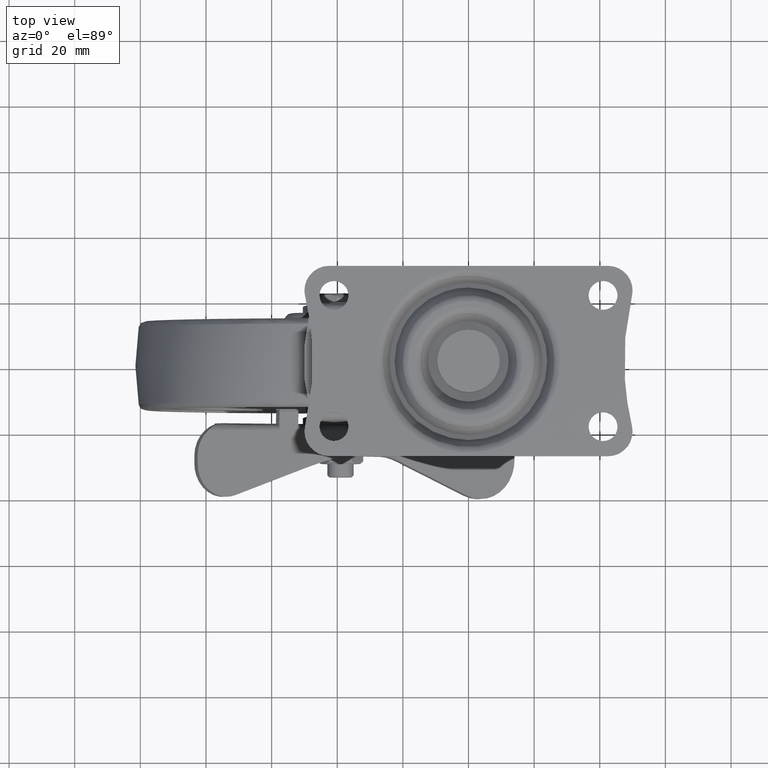
[diagram: clean part render]
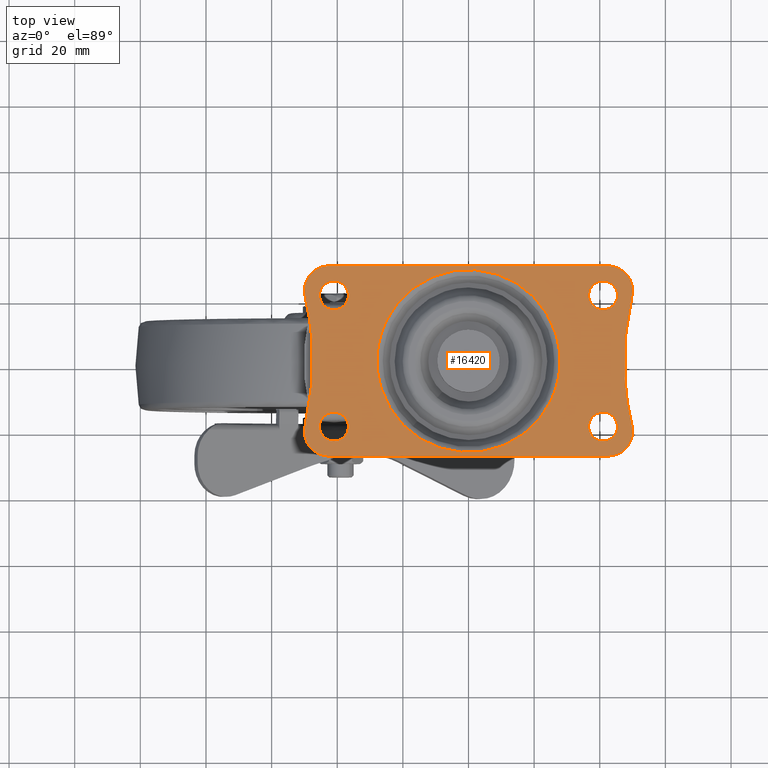
[diagram: same view with one face highlighted and labeled with its STEP entity id]
A machine part, top view. The second image highlights one B-rep face of the part: STEP entity #16420.
In plain terms, the highlighted face is a freeform B-spline surface patch.
Its self-contained STEP definition (entity closure, byte-faithful):
#14573=CARTESIAN_POINT('',(-44.191646626339647,16.971240765977491,1.999999999968882));
#14574=VERTEX_POINT('',#14573);
#14575=CARTESIAN_POINT('',(-40.999995359596333,15.599999900002450,2.0));
#14576=VERTEX_POINT('',#14575);
#14577=CARTESIAN_POINT('',(-44.191646626339647,16.971240765977491,1.999999999968882));
#14578=CARTESIAN_POINT('',(-43.961235314722451,16.728365491330809,1.999999999971126));
#14579=CARTESIAN_POINT('',(-43.415969586831231,16.271503236172990,1.999999999976445));
#14580=CARTESIAN_POINT('',(-42.338951381846186,15.742523104143819,1.999999999986951));
#14581=CARTESIAN_POINT('',(-41.483611512215937,15.599680009546010,1.999999999995282));
#14582=CARTESIAN_POINT('',(-40.999995359596333,15.599999900002450,2.0));
#14583=B_SPLINE_CURVE_WITH_KNOTS('',3,(#14577,#14578,#14579,#14580,#14581,#14582),.UNSPECIFIED.,.F.,.U.,(4,1,1,4),(0.000000129538949,1.004362962533802,2.120273938149728,3.571043816610418),.UNSPECIFIED.);
#14584=EDGE_CURVE('',#14574,#14576,#14583,.T.);
#14586=CARTESIAN_POINT('',(-36.599999900000000,20.0,2.0));
#14587=VERTEX_POINT('',#14586);
#14588=CARTESIAN_POINT('',(-40.999995359596333,15.599999900002450,2.0));
#14589=CARTESIAN_POINT('',(-40.423922617766792,15.599331991319540,2.000000000000008));
#14590=CARTESIAN_POINT('',(-39.524484246894261,15.779375252450720,1.999999999999987));
#14591=CARTESIAN_POINT('',(-38.540924791815407,16.320911521973748,2.000000000000016));
#14592=CARTESIAN_POINT('',(-37.843375976581221,16.893370175453480,1.999999999999981));
#14593=CARTESIAN_POINT('',(-37.198973422651846,17.678282236987311,2.000000000000022));
#14594=CARTESIAN_POINT('',(-36.712441952868318,18.776124843531910,1.999999999999999));
#14595=CARTESIAN_POINT('',(-36.599883324859860,19.604031389509959,2.000000000000001));
#14596=CARTESIAN_POINT('',(-36.599999900000000,20.0,2.0));
#14597=B_SPLINE_CURVE_WITH_KNOTS('',3,(#14588,#14589,#14590,#14591,#14592,#14593,#14594,#14595,#14596),.UNSPECIFIED.,.F.,.U.,(4,1,1,1,1,1,4),(0.000000460146259,1.727919049664438,2.699934183085161,3.347906009620093,4.427776727025464,5.723763383410947,6.911674816714598),.UNSPECIFIED.);
#14598=EDGE_CURVE('',#14576,#14587,#14597,.T.);
#14600=CARTESIAN_POINT('',(-37.808353373660353,23.028759234022509,1.999999999968882));
#14601=VERTEX_POINT('',#14600);
#14602=CARTESIAN_POINT('',(-36.599999900000000,20.0,2.0));
#14603=CARTESIAN_POINT('',(-36.599660215936602,20.522020335984472,1.999999999994639));
#14604=CARTESIAN_POINT('',(-36.800517970858103,21.635222263782779,1.999999999983197));
#14605=CARTESIAN_POINT('',(-37.400599769860648,22.600071287989550,1.999999999973289));
#14606=CARTESIAN_POINT('',(-37.808353373660353,23.028759234022509,1.999999999968882));
#14607=B_SPLINE_CURVE_WITH_KNOTS('',3,(#14602,#14603,#14604,#14605,#14606),.UNSPECIFIED.,.F.,.U.,(4,1,4),(0.000000125255836,1.565958961991485,3.340637922588658),.UNSPECIFIED.);
#14608=EDGE_CURVE('',#14587,#14601,#14607,.T.);
#14677=CARTESIAN_POINT('',(-45.400000100000007,20.0,2.0));
#14678=VERTEX_POINT('',#14677);
#14679=CARTESIAN_POINT('',(-45.400000100000007,20.0,2.0));
#14680=CARTESIAN_POINT('',(-45.400221511531832,19.547603577149410,1.999999999995352));
#14681=CARTESIAN_POINT('',(-45.275474447805280,18.747380211655621,1.999999999987130));
#14682=CARTESIAN_POINT('',(-44.810909382234570,17.726764749346529,1.999999999976644));
#14683=CARTESIAN_POINT('',(-44.407265641416863,17.198380396016809,1.999999999971214));
#14684=CARTESIAN_POINT('',(-44.191646626339647,16.971240765977491,1.999999999968882));
#14685=B_SPLINE_CURVE_WITH_KNOTS('',3,(#14679,#14680,#14681,#14682,#14683,#14684),.UNSPECIFIED.,.F.,.U.,(4,1,1,4),(0.000000125255855,1.357158161508154,2.401079657008411,3.340637922588672),.UNSPECIFIED.);
#14686=EDGE_CURVE('',#14678,#14574,#14685,.T.);
#14722=CARTESIAN_POINT('',(-41.000004640403688,24.400000099997548,2.0));
#14723=VERTEX_POINT('',#14722);
#14724=CARTESIAN_POINT('',(-37.808353373660353,23.028759234022509,1.999999999968882));
#14725=CARTESIAN_POINT('',(-38.243109330103223,23.488136943758889,1.999999999973118));
#14726=CARTESIAN_POINT('',(-39.252078322513412,24.170421980182098,1.999999999982962));
#14727=CARTESIAN_POINT('',(-40.441962493426288,24.400525060441819,1.999999999994558));
#14728=CARTESIAN_POINT('',(-41.000004640403688,24.400000099997548,2.0));
#14729=B_SPLINE_CURVE_WITH_KNOTS('',3,(#14724,#14725,#14726,#14727,#14728),.UNSPECIFIED.,.F.,.U.,(4,1,4),(0.000000129538670,1.897087739368949,3.571043816610434),.UNSPECIFIED.);
#14730=EDGE_CURVE('',#14601,#14723,#14729,.T.);
#14732=CARTESIAN_POINT('',(-41.000004640403688,24.400000099997548,2.0));
#14733=CARTESIAN_POINT('',(-41.576048479000022,24.400591435463319,1.999999999999997));
#14734=CARTESIAN_POINT('',(-42.547524523635659,24.206347561044382,2.000000000000003));
#14735=CARTESIAN_POINT('',(-43.645874076096632,23.565954302906182,1.999999999999997));
#14736=CARTESIAN_POINT('',(-44.484332436499407,22.767891996985220,2.000000000000004));
#14737=CARTESIAN_POINT('',(-45.192012298299922,21.619583956057610,1.999999999999989));
#14738=CARTESIAN_POINT('',(-45.400609845654081,20.576025958989351,2.000000000000009));
#14739=CARTESIAN_POINT('',(-45.400000100000007,20.0,2.0));
#14740=B_SPLINE_CURVE_WITH_KNOTS('',3,(#14732,#14733,#14734,#14735,#14736,#14737,#14738,#14739),.UNSPECIFIED.,.F.,.U.,(4,1,1,1,1,4),(0.000000460136149,1.727919049657275,2.915873930165517,3.779741512302285,5.183756225166462,6.911674816714668),.UNSPECIFIED.);
#14741=EDGE_CURVE('',#14723,#14678,#14740,.T.);
#14764=CARTESIAN_POINT('',(-44.191646626339647,-23.028759234022509,1.999999999968882));
#14765=VERTEX_POINT('',#14764);
#14766=CARTESIAN_POINT('',(-40.999995359596340,-24.400000099997548,2.0));
#14767=VERTEX_POINT('',#14766);
#14768=CARTESIAN_POINT('',(-44.191646626339647,-23.028759234022509,1.999999999968882));
#14769=CARTESIAN_POINT('',(-43.910077149045343,-23.325659288548412,1.999999999971626));
#14770=CARTESIAN_POINT('',(-43.292735522749354,-23.816610649248020,1.999999999977649));
#14771=CARTESIAN_POINT('',(-42.190242142628513,-24.290255093360120,1.999999999988392));
#14772=CARTESIAN_POINT('',(-41.409191854867558,-24.400155614364241,1.999999999996015));
#14773=CARTESIAN_POINT('',(-40.999995359596340,-24.400000099997548,2.0));
#14774=B_SPLINE_CURVE_WITH_KNOTS('',3,(#14768,#14769,#14770,#14771,#14772,#14773),.UNSPECIFIED.,.F.,.U.,(4,1,1,4),(0.000000129539464,1.227551161257772,2.343492784761684,3.571043816610414),.UNSPECIFIED.);
#14775=EDGE_CURVE('',#14765,#14767,#14774,.T.);
#14777=CARTESIAN_POINT('',(-36.599999900000000,-20.0,2.0));
#14778=VERTEX_POINT('',#14777);
#14779=CARTESIAN_POINT('',(-40.999995359596340,-24.400000099997548,2.0));
#14780=CARTESIAN_POINT('',(-40.604020143094132,-24.400141248669190,2.0));
#14781=CARTESIAN_POINT('',(-39.848166653534307,-24.297212129517298,2.0));
#14782=CARTESIAN_POINT('',(-38.675172635750457,-23.811736003103078,2.000000000000002));
#14783=CARTESIAN_POINT('',(-37.771588425417228,-23.070165803609541,1.999999999999998));
#14784=CARTESIAN_POINT('',(-37.167829671779259,-22.212299670192198,2.000000000000004));
#14785=CARTESIAN_POINT('',(-36.731366590510639,-21.259710259592190,1.999999999999993));
#14786=CARTESIAN_POINT('',(-36.599619817956643,-20.504027489536021,1.999999999999997));
#14787=CARTESIAN_POINT('',(-36.599999900000000,-20.0,2.0));
#14788=B_SPLINE_CURVE_WITH_KNOTS('',3,(#14779,#14780,#14781,#14782,#14783,#14784,#14785,#14786,#14787),.UNSPECIFIED.,.F.,.U.,(4,1,1,1,1,1,4),(0.000000460142762,1.187911892418697,2.267926207293846,3.779741512305171,4.643749068792261,5.399748950830405,6.911674816714607),.UNSPECIFIED.);
#14789=EDGE_CURVE('',#14767,#14778,#14788,.T.);
#14791=CARTESIAN_POINT('',(-37.808353373660353,-16.971240765977491,1.999999999968882));
#14792=VERTEX_POINT('',#14791);
#14793=CARTESIAN_POINT('',(-36.599999900000000,-20.0,2.0));
#14794=CARTESIAN_POINT('',(-36.599576135626677,-19.477965254655579,1.999999999994633));
#14795=CARTESIAN_POINT('',(-36.800646102745709,-18.364803885605319,1.999999999983210));
#14796=CARTESIAN_POINT('',(-37.400551592579014,-17.399918039219560,1.999999999973283));
#14797=CARTESIAN_POINT('',(-37.808353373660353,-16.971240765977491,1.999999999968882));
#14798=B_SPLINE_CURVE_WITH_KNOTS('',3,(#14793,#14794,#14795,#14796,#14797),.UNSPECIFIED.,.F.,.U.,(4,1,4),(0.000000125254986,1.565958961991247,3.340637922588661),.UNSPECIFIED.);
#14799=EDGE_CURVE('',#14778,#14792,#14798,.T.);
#14867=CARTESIAN_POINT('',(-45.400000100000007,-20.0,2.0));
#14868=VERTEX_POINT('',#14867);
#14869=CARTESIAN_POINT('',(-45.400000100000007,-20.0,2.0));
#14870=CARTESIAN_POINT('',(-45.400432499681962,-20.522032143060439,1.999999999994634));
#14871=CARTESIAN_POINT('',(-45.199320862115698,-21.635195801872548,1.999999999983205));
#14872=CARTESIAN_POINT('',(-44.599484660652983,-22.600097323028582,1.999999999973283));
#14873=CARTESIAN_POINT('',(-44.191646626339647,-23.028759234022509,1.999999999968882));
#14874=B_SPLINE_CURVE_WITH_KNOTS('',3,(#14869,#14870,#14871,#14872,#14873),.UNSPECIFIED.,.F.,.U.,(4,1,4),(0.000000125256259,1.565958961991748,3.340637922588685),.UNSPECIFIED.);
#14875=EDGE_CURVE('',#14868,#14765,#14874,.T.);
#14910=CARTESIAN_POINT('',(-41.000004640403688,-15.599999900002450,2.0));
#14911=VERTEX_POINT('',#14910);
#14912=CARTESIAN_POINT('',(-37.808353373660353,-16.971240765977491,1.999999999968882));
#14913=CARTESIAN_POINT('',(-38.141064330219997,-16.620284587290652,1.999999999972128));
#14914=CARTESIAN_POINT('',(-38.833370511125651,-16.098020732296909,1.999999999978875));
#14915=CARTESIAN_POINT('',(-39.958501875786901,-15.681015891984201,1.999999999989850));
#14916=CARTESIAN_POINT('',(-40.665226600029420,-15.599945625704761,1.999999999996732));
#14917=CARTESIAN_POINT('',(-41.000004640403688,-15.599999900002450,2.0));
#14918=B_SPLINE_CURVE_WITH_KNOTS('',3,(#14912,#14913,#14914,#14915,#14916,#14917),.UNSPECIFIED.,.F.,.U.,(4,1,1,4),(0.000000129539557,1.450770007751548,2.566680983419448,3.571043816610432),.UNSPECIFIED.);
#14919=EDGE_CURVE('',#14792,#14911,#14918,.T.);
#14921=CARTESIAN_POINT('',(-41.000004640403688,-15.599999900002450,2.0));
#14922=CARTESIAN_POINT('',(-41.395974270479172,-15.599880437681239,2.000000000000003));
#14923=CARTESIAN_POINT('',(-42.223858273781268,-15.712479572827011,1.999999999999998));
#14924=CARTESIAN_POINT('',(-43.454966348116173,-16.257781026952081,2.000000000000004));
#14925=CARTESIAN_POINT('',(-44.402190152291539,-17.116555064008349,2.0));
#14926=CARTESIAN_POINT('',(-45.181170020417227,-18.380904636055220,1.999999999999995));
#14927=CARTESIAN_POINT('',(-45.401080787029940,-19.351803799562941,1.999999999999994));
#14928=CARTESIAN_POINT('',(-45.400000100000007,-20.0,2.0));
#14929=B_SPLINE_CURVE_WITH_KNOTS('',3,(#14921,#14922,#14923,#14924,#14925,#14926,#14927,#14928),.UNSPECIFIED.,.F.,.U.,(4,1,1,1,1,4),(0.000000460144575,1.187911892420241,2.483898544749976,3.995801355097980,4.967763505593855,6.911674816714586),.UNSPECIFIED.);
#14930=EDGE_CURVE('',#14911,#14868,#14929,.T.);
#14953=CARTESIAN_POINT('',(37.808353373660353,16.971240765977491,1.999999999968882));
#14954=VERTEX_POINT('',#14953);
#14955=CARTESIAN_POINT('',(41.000004640403667,15.599999900002450,2.0));
#14956=VERTEX_POINT('',#14955);
#14957=CARTESIAN_POINT('',(37.808353373660353,16.971240765977491,1.999999999968882));
#14958=CARTESIAN_POINT('',(38.089903390340332,16.674310180703589,1.999999999971627));
#14959=CARTESIAN_POINT('',(38.648500170168887,16.230226123371409,1.999999999977074));
#14960=CARTESIAN_POINT('',(39.735461967824833,15.730147709289220,1.999999999987672));
#14961=CARTESIAN_POINT('',(40.516378279823797,15.599685612556080,1.999999999995286));
#14962=CARTESIAN_POINT('',(41.000004640403667,15.599999900002450,2.0));
#14963=B_SPLINE_CURVE_WITH_KNOTS('',3,(#14957,#14958,#14959,#14960,#14961,#14962),.UNSPECIFIED.,.F.,.U.,(4,1,1,4),(0.000000129538852,1.227551161257483,2.120273938149941,3.571043816610426),.UNSPECIFIED.);
#14964=EDGE_CURVE('',#14954,#14956,#14963,.T.);
#14966=CARTESIAN_POINT('',(45.400000100000007,20.0,2.0));
#14967=VERTEX_POINT('',#14966);
#14968=CARTESIAN_POINT('',(41.000004640403667,15.599999900002450,2.0));
#14969=CARTESIAN_POINT('',(41.576071845699140,15.599392930738150,2.000000000000001));
#14970=CARTESIAN_POINT('',(42.475490195610213,15.779346738342420,2.0));
#14971=CARTESIAN_POINT('',(43.713067453243497,16.460453464487539,1.999999999999999));
#14972=CARTESIAN_POINT('',(44.487938650094037,17.235221887885370,2.000000000000003));
#14973=CARTESIAN_POINT('',(45.197463393300161,18.452864674061370,1.999999999999996));
#14974=CARTESIAN_POINT('',(45.401053393963537,19.351784646075320,2.0));
#14975=CARTESIAN_POINT('',(45.400000100000007,20.0,2.0));
#14976=B_SPLINE_CURVE_WITH_KNOTS('',3,(#14968,#14969,#14970,#14971,#14972,#14973,#14974,#14975),.UNSPECIFIED.,.F.,.U.,(4,1,1,1,1,4),(0.000000460139980,1.727919049659939,2.699934183081793,4.211741092349952,4.967763505592465,6.911674816714671),.UNSPECIFIED.);
#14977=EDGE_CURVE('',#14956,#14967,#14976,.T.);
#14979=CARTESIAN_POINT('',(44.191646626339647,23.028759234022509,1.999999999968882));
#14980=VERTEX_POINT('',#14979);
#14981=CARTESIAN_POINT('',(45.400000100000007,20.0,2.0));
#14982=CARTESIAN_POINT('',(45.400700293458797,20.591649134151741,1.999999999993928));
#14983=CARTESIAN_POINT('',(45.171770642672449,21.704557294880662,1.999999999982478));
#14984=CARTESIAN_POINT('',(44.551254220040121,22.650351881443399,1.999999999972773));
#14985=CARTESIAN_POINT('',(44.191646626339647,23.028759234022509,1.999999999968882));
#14986=B_SPLINE_CURVE_WITH_KNOTS('',3,(#14981,#14982,#14983,#14984,#14985),.UNSPECIFIED.,.F.,.U.,(4,1,4),(0.000000125256034,1.774679085938028,3.340637922588673),.UNSPECIFIED.);
#14987=EDGE_CURVE('',#14967,#14980,#14986,.T.);
#15055=CARTESIAN_POINT('',(36.599999900000000,20.0,2.0));
#15056=VERTEX_POINT('',#15055);
#15057=CARTESIAN_POINT('',(36.599999900000000,20.0,2.0));
#15058=CARTESIAN_POINT('',(36.599627666632891,19.477975029782311,1.999999999994643));
#15059=CARTESIAN_POINT('',(36.800564976584887,18.364787167086831,1.999999999983188));
#15060=CARTESIAN_POINT('',(37.400581938989632,17.399922938285702,1.999999999973296));
#15061=CARTESIAN_POINT('',(37.808353373660353,16.971240765977491,1.999999999968882));
#15062=B_SPLINE_CURVE_WITH_KNOTS('',3,(#15057,#15058,#15059,#15060,#15061),.UNSPECIFIED.,.F.,.U.,(4,1,4),(0.000000125256040,1.565958961991678,3.340637922588660),.UNSPECIFIED.);
#15063=EDGE_CURVE('',#15056,#14954,#15062,.T.);
#15099=CARTESIAN_POINT('',(40.999995359596319,24.400000099997548,2.0));
#15100=VERTEX_POINT('',#15099);
#15101=CARTESIAN_POINT('',(44.191646626339647,23.028759234022509,1.999999999968882));
#15102=CARTESIAN_POINT('',(43.858972200137437,23.379793116424430,1.999999999972127));
#15103=CARTESIAN_POINT('',(43.226780187222730,23.856419398200231,1.999999999978286));
#15104=CARTESIAN_POINT('',(42.115836255245611,24.300690841448649,1.999999999989125));
#15105=CARTESIAN_POINT('',(41.409180820228762,24.400135621187751,1.999999999996009));
#15106=CARTESIAN_POINT('',(40.999995359596319,24.400000099997548,2.0));
#15107=B_SPLINE_CURVE_WITH_KNOTS('',3,(#15101,#15102,#15103,#15104,#15105,#15106),.UNSPECIFIED.,.F.,.U.,(4,1,1,4),(0.000000129538840,1.450770007751356,2.343492784761530,3.571043816610422),.UNSPECIFIED.);
#15108=EDGE_CURVE('',#14980,#15100,#15107,.T.);
#15110=CARTESIAN_POINT('',(40.999995359596319,24.400000099997548,2.0));
#15111=CARTESIAN_POINT('',(40.423978668905541,24.400583771724019,2.000000000000003));
#15112=CARTESIAN_POINT('',(39.380394549340977,24.192064626751570,1.999999999999998));
#15113=CARTESIAN_POINT('',(38.232097932742668,23.484310206190919,2.000000000000003));
#15114=CARTESIAN_POINT('',(37.508912970643749,22.724439651086140,2.000000000000001));
#15115=CARTESIAN_POINT('',(37.005724400227187,21.929939783692880,2.000000000000003));
#15116=CARTESIAN_POINT('',(36.675824698283897,21.007927131696270,1.999999999999998));
#15117=CARTESIAN_POINT('',(36.599955471449107,20.323972178975229,2.0));
#15118=CARTESIAN_POINT('',(36.599999900000000,20.0,2.0));
#15119=B_SPLINE_CURVE_WITH_KNOTS('',3,(#15110,#15111,#15112,#15113,#15114,#15115,#15116,#15117,#15118),.UNSPECIFIED.,.F.,.U.,(4,1,1,1,1,1,4),(0.000000460141826,1.727919049661032,3.131933760528388,3.995801355096208,4.859759915722637,5.939735721905261,6.911674816714625),.UNSPECIFIED.);
#15120=EDGE_CURVE('',#15100,#15056,#15119,.T.);
#15143=CARTESIAN_POINT('',(37.808353373660353,-23.028759234022509,1.999999999968882));
#15144=VERTEX_POINT('',#15143);
#15145=CARTESIAN_POINT('',(41.000004640403667,-24.400000099997548,2.0));
#15146=VERTEX_POINT('',#15145);
#15147=CARTESIAN_POINT('',(37.808353373660353,-23.028759234022509,1.999999999968882));
#15148=CARTESIAN_POINT('',(38.192102529284107,-23.433911584171380,1.999999999972626));
#15149=CARTESIAN_POINT('',(39.178077086375907,-24.138627428111668,1.999999999982232));
#15150=CARTESIAN_POINT('',(40.367517116680851,-24.400853777735659,1.999999999993834));
#15151=CARTESIAN_POINT('',(41.000004640403667,-24.400000099997548,2.0));
#15152=B_SPLINE_CURVE_WITH_KNOTS('',3,(#15147,#15148,#15149,#15150,#15151),.UNSPECIFIED.,.F.,.U.,(4,1,4),(0.000000129537069,1.673956206783090,3.571043816610411),.UNSPECIFIED.);
#15153=EDGE_CURVE('',#15144,#15146,#15152,.T.);
#15155=CARTESIAN_POINT('',(45.400000100000007,-20.0,2.0));
#15156=VERTEX_POINT('',#15155);
#15157=CARTESIAN_POINT('',(41.000004640403667,-24.400000099997548,2.0));
#15158=CARTESIAN_POINT('',(41.648123677211238,-24.400988490607158,1.999999999999999));
#15159=CARTESIAN_POINT('',(42.763170850110697,-24.148829918783129,2.000000000000004));
#15160=CARTESIAN_POINT('',(44.116055380937432,-23.220651284664559,1.999999999999994));
#15161=CARTESIAN_POINT('',(44.921228312130822,-22.134967331738430,2.000000000000012));
#15162=CARTESIAN_POINT('',(45.324128686437717,-21.007898973175980,1.999999999999994));
#15163=CARTESIAN_POINT('',(45.400045079172862,-20.323971836244990,2.000000000000001));
#15164=CARTESIAN_POINT('',(45.400000100000007,-20.0,2.0));
#15165=B_SPLINE_CURVE_WITH_KNOTS('',3,(#15157,#15158,#15159,#15160,#15161,#15162,#15163,#15164),.UNSPECIFIED.,.F.,.U.,(4,1,1,1,1,4),(0.000000460140767,1.943911772386969,3.347906009618380,4.859759915722920,5.939735721905360,6.911674816714633),.UNSPECIFIED.);
#15166=EDGE_CURVE('',#15146,#15156,#15165,.T.);
#15168=CARTESIAN_POINT('',(44.191646626339647,-16.971240765977491,1.999999999968882));
#15169=VERTEX_POINT('',#15168);
#15170=CARTESIAN_POINT('',(45.400000100000007,-20.0,2.0));
#15171=CARTESIAN_POINT('',(45.400221511531832,-19.547603577149410,1.999999999995352));
#15172=CARTESIAN_POINT('',(45.275474447805280,-18.747380211655621,1.999999999987130));
#15173=CARTESIAN_POINT('',(44.810909382234570,-17.726764749346529,1.999999999976644));
#15174=CARTESIAN_POINT('',(44.407265641416863,-17.198380396016809,1.999999999971214));
#15175=CARTESIAN_POINT('',(44.191646626339647,-16.971240765977491,1.999999999968882));
#15176=B_SPLINE_CURVE_WITH_KNOTS('',3,(#15170,#15171,#15172,#15173,#15174,#15175),.UNSPECIFIED.,.F.,.U.,(4,1,1,4),(0.000000125255855,1.357158161508154,2.401079657008411,3.340637922588672),.UNSPECIFIED.);
#15177=EDGE_CURVE('',#15156,#15169,#15176,.T.);
#15246=CARTESIAN_POINT('',(36.599999900000000,-20.0,2.0));
#15247=VERTEX_POINT('',#15246);
#15248=CARTESIAN_POINT('',(36.599999900000000,-20.0,2.0));
#15249=CARTESIAN_POINT('',(36.599626234465632,-20.522024989662292,1.999999999994637));
#15250=CARTESIAN_POINT('',(36.800570956135452,-21.635210740184871,1.999999999983199));
#15251=CARTESIAN_POINT('',(37.400575973367168,-22.600078543154741,1.999999999973285));
#15252=CARTESIAN_POINT('',(37.808353373660353,-23.028759234022509,1.999999999968882));
#15253=B_SPLINE_CURVE_WITH_KNOTS('',3,(#15248,#15249,#15250,#15251,#15252),.UNSPECIFIED.,.F.,.U.,(4,1,4),(0.000000125256005,1.565958961991572,3.340637922588661),.UNSPECIFIED.);
#15254=EDGE_CURVE('',#15247,#15144,#15253,.T.);
#15291=CARTESIAN_POINT('',(40.999995359596319,-15.599999900002450,2.0));
#15292=VERTEX_POINT('',#15291);
#15293=CARTESIAN_POINT('',(44.191646626339647,-16.971240765977491,1.999999999968882));
#15294=CARTESIAN_POINT('',(43.858973415516793,-16.620209135255099,1.999999999972124));
#15295=CARTESIAN_POINT('',(43.226778453453129,-16.143579393390649,1.999999999978288));
#15296=CARTESIAN_POINT('',(42.115837928755703,-15.699309772077729,1.999999999989122));
#15297=CARTESIAN_POINT('',(41.409180681295702,-15.599863927600151,1.999999999996006));
#15298=CARTESIAN_POINT('',(40.999995359596319,-15.599999900002450,2.0));
#15299=B_SPLINE_CURVE_WITH_KNOTS('',3,(#15293,#15294,#15295,#15296,#15297,#15298),.UNSPECIFIED.,.F.,.U.,(4,1,1,4),(0.000000129539970,1.450770007751691,2.343492784761506,3.571043816610433),.UNSPECIFIED.);
#15300=EDGE_CURVE('',#15169,#15292,#15299,.T.);
#15302=CARTESIAN_POINT('',(40.999995359596319,-15.599999900002450,2.0));
#15303=CARTESIAN_POINT('',(40.423951478536459,-15.599408615135969,1.999999999999999));
#15304=CARTESIAN_POINT('',(39.452477614056797,-15.793653630632880,1.999999999999996));
#15305=CARTESIAN_POINT('',(38.354104119643608,-16.434031547259679,2.000000000000005));
#15306=CARTESIAN_POINT('',(37.646825062802243,-17.107493281210111,1.999999999999996));
#15307=CARTESIAN_POINT('',(37.105233030811107,-17.876360768414720,2.000000000000008));
#15308=CARTESIAN_POINT('',(36.702745581016842,-18.848143149498920,1.999999999999988));
#15309=CARTESIAN_POINT('',(36.599860208432617,-19.604022269564911,1.999999999999997));
#15310=CARTESIAN_POINT('',(36.599999900000000,-20.0,2.0));
#15311=B_SPLINE_CURVE_WITH_KNOTS('',3,(#15302,#15303,#15304,#15305,#15306,#15307,#15308,#15309,#15310),.UNSPECIFIED.,.F.,.U.,(4,1,1,1,1,1,4),(0.000000460140508,1.727919049660281,2.915873930167523,3.779741512303496,4.643749068790889,5.723763383409952,6.911674816714657),.UNSPECIFIED.);
#15312=EDGE_CURVE('',#15292,#15247,#15311,.T.);
#16045=CARTESIAN_POINT('',(-49.794594143545098,-19.756756964460099,2.0));
#16046=VERTEX_POINT('',#16045);
#16047=CARTESIAN_POINT('',(-42.500000000000000,-29.000003000000000,2.0));
#16048=VERTEX_POINT('',#16047);
#16049=CARTESIAN_POINT('',(-49.794594143545098,-19.756756964460099,2.0));
#16050=CARTESIAN_POINT('',(-50.008426030185532,-20.648379312075370,2.0));
#16051=CARTESIAN_POINT('',(-50.080710497446802,-22.080689071763668,2.000000000000002));
#16052=CARTESIAN_POINT('',(-49.683001503118973,-23.770848631729471,1.999999999999999));
#16053=CARTESIAN_POINT('',(-49.182332140942641,-24.978510238741730,1.999999999999991));
#16054=CARTESIAN_POINT('',(-48.547214781352061,-26.002202124651401,2.000000000000006));
#16055=CARTESIAN_POINT('',(-47.625730556793137,-27.028525712624440,1.999999999999982));
#16056=CARTESIAN_POINT('',(-46.341225653043097,-28.032013722949149,1.999999999999996));
#16057=CARTESIAN_POINT('',(-44.580365202660403,-28.809840257428540,2.000000000000027));
#16058=CARTESIAN_POINT('',(-43.169954774701623,-29.000195527274681,1.999999999999987));
#16059=CARTESIAN_POINT('',(-42.500000000000000,-29.000003000000000,2.0));
#16060=B_SPLINE_CURVE_WITH_KNOTS('',3,(#16049,#16050,#16051,#16052,#16053,#16054,#16055,#16056,#16057,#16058,#16059),.UNSPECIFIED.,.F.,.U.,(4,1,1,1,1,1,1,1,4),(0.000000457877729,2.750377624642004,4.231411683680104,5.183461277386959,6.664529923529672,7.828037936574070,9.309012245038407,11.530562015397170,13.540420483248189),.UNSPECIFIED.);
#16061=EDGE_CURVE('',#16046,#16048,#16060,.T.);
#16082=CARTESIAN_POINT('',(42.500002617993950,-28.999999999999549,2.0));
#16083=VERTEX_POINT('',#16082);
#16084=CARTESIAN_POINT('',(42.500002617993950,-28.999999999999549,2.0));
#16085=CARTESIAN_POINT('',(-42.500000000000000,-29.000003000000000,2.0));
#16086=QUASI_UNIFORM_CURVE('',1,(#16084,#16085),.UNSPECIFIED.,.F.,.U.);
#16087=EDGE_CURVE('',#16083,#16048,#16086,.T.);
#16113=CARTESIAN_POINT('',(49.794594135559400,-19.756756931044251,2.0));
#16114=VERTEX_POINT('',#16113);
#16115=CARTESIAN_POINT('',(42.500002617993950,-28.999999999999549,2.0));
#16116=CARTESIAN_POINT('',(43.099427308018740,-29.000051292473401,2.0));
#16117=CARTESIAN_POINT('',(44.474665492413251,-28.834564958611441,2.0));
#16118=CARTESIAN_POINT('',(46.418199215892251,-28.024575187710791,2.000000000000004));
#16119=CARTESIAN_POINT('',(47.982193902754190,-26.730454170125451,1.999999999999989));
#16120=CARTESIAN_POINT('',(49.156677663583771,-25.129232800764260,2.000000000000010));
#16121=CARTESIAN_POINT('',(49.882238883005762,-23.307713674940160,2.0));
#16122=CARTESIAN_POINT('',(50.067805381465398,-21.395406490061681,1.999999999999986));
#16123=CARTESIAN_POINT('',(49.909348503323862,-20.236859941251488,1.999999999999992));
#16124=CARTESIAN_POINT('',(49.794594135559400,-19.756756931044251,2.0));
#16125=B_SPLINE_CURVE_WITH_KNOTS('',3,(#16115,#16116,#16117,#16118,#16119,#16120,#16121,#16122,#16123,#16124),.UNSPECIFIED.,.F.,.U.,(4,1,1,1,1,1,1,4),(0.000000457906797,1.798322660927772,4.125598404548411,6.241309335060558,7.828035268885987,10.049524033713469,12.059500314839960,13.540415868839030),.UNSPECIFIED.);
#16126=EDGE_CURVE('',#16083,#16114,#16125,.T.);
#16152=CARTESIAN_POINT('',(49.794603130326699,19.756754781498149,2.0));
#16153=VERTEX_POINT('',#16152);
#16154=CARTESIAN_POINT('',(49.794603130326699,19.756754781498149,2.0));
#16155=CARTESIAN_POINT('',(48.490452313699890,14.302592908421490,2.000000000000007));
#16156=CARTESIAN_POINT('',(47.122937998146973,4.272563506448646,1.999999999999999));
#16157=CARTESIAN_POINT('',(47.685046849204241,-9.049618794996789,2.0));
#16158=CARTESIAN_POINT('',(49.046283158136617,-16.625603518368351,1.999999999999988));
#16159=CARTESIAN_POINT('',(49.794594135559400,-19.756756931044251,2.0));
#16160=B_SPLINE_CURVE_WITH_KNOTS('',3,(#16154,#16155,#16156,#16157,#16158,#16159),.UNSPECIFIED.,.F.,.U.,(4,1,1,4),(8.866039E-009,16.823651460457700,30.220242064544220,39.878257439422917),.UNSPECIFIED.);
#16161=EDGE_CURVE('',#16153,#16114,#16160,.T.);
#16187=CARTESIAN_POINT('',(42.500000000000000,29.0,2.0));
#16188=VERTEX_POINT('',#16187);
#16189=CARTESIAN_POINT('',(49.794603130326699,19.756754781498149,2.0));
#16190=CARTESIAN_POINT('',(49.975342035311293,20.511209091109350,1.999999999999999));
#16191=CARTESIAN_POINT('',(50.079371412229627,21.827475988716849,2.000000000000003));
#16192=CARTESIAN_POINT('',(49.765660832630658,23.536426214694291,1.999999999999999));
#16193=CARTESIAN_POINT('',(49.199846336819412,24.987032787332041,2.000000000000010));
#16194=CARTESIAN_POINT('',(48.212868069061571,26.505783233729900,1.999999999999975));
#16195=CARTESIAN_POINT('',(46.629099872917578,27.893319425779111,2.000000000000020));
#16196=CARTESIAN_POINT('',(44.615558986228407,28.799589495083602,1.999999999999978));
#16197=CARTESIAN_POINT('',(43.205245357083662,29.000260111159768,2.000000000000034));
#16198=CARTESIAN_POINT('',(42.500000000000000,29.0,2.0));
#16199=B_SPLINE_CURVE_WITH_KNOTS('',3,(#16189,#16190,#16191,#16192,#16193,#16194,#16195,#16196,#16197,#16198),.UNSPECIFIED.,.F.,.U.,(4,1,1,1,1,1,1,4),(0.000000457869668,2.327257331026306,3.914040009460402,5.183462909542753,6.981707231269390,9.309015176328103,11.424738148702390,13.540424746926339),.UNSPECIFIED.);
#16200=EDGE_CURVE('',#16153,#16188,#16199,.T.);
#16217=CARTESIAN_POINT('',(-42.499997643805600,28.999999999999499,2.0));
#16218=VERTEX_POINT('',#16217);
#16219=CARTESIAN_POINT('',(-42.499997643805600,28.999999999999499,2.0));
#16220=CARTESIAN_POINT('',(42.500000000000000,29.0,2.0));
#16221=QUASI_UNIFORM_CURVE('',1,(#16219,#16220),.UNSPECIFIED.,.F.,.U.);
#16222=EDGE_CURVE('',#16218,#16188,#16221,.T.);
#16248=CARTESIAN_POINT('',(-49.794595056304097,19.756760783900798,2.0));
#16249=VERTEX_POINT('',#16248);
#16250=CARTESIAN_POINT('',(-42.499997643805600,28.999999999999499,2.0));
#16251=CARTESIAN_POINT('',(-43.275810074578992,29.000428412056412,1.999999999999995));
#16252=CARTESIAN_POINT('',(-44.368633664138322,28.828847632731840,2.000000000000010));
#16253=CARTESIAN_POINT('',(-45.815875003625358,28.261059170523751,1.999999999999977));
#16254=CARTESIAN_POINT('',(-47.161283610740107,27.475240162372121,2.000000000000076));
#16255=CARTESIAN_POINT('',(-48.307683149073917,26.350782343430730,1.999999999999863));
#16256=CARTESIAN_POINT('',(-49.145903877804720,25.040542178634709,2.000000000000062));
#16257=CARTESIAN_POINT('',(-49.687253472690607,23.809576949717009,1.999999999999945));
#16258=CARTESIAN_POINT('',(-50.084351718043038,22.007463785852849,2.000000000000028));
#16259=CARTESIAN_POINT('',(-49.991818549565650,20.579788604678889,2.000000000000004));
#16260=CARTESIAN_POINT('',(-49.794595056304097,19.756760783900798,2.0));
#16261=B_SPLINE_CURVE_WITH_KNOTS('',3,(#16250,#16251,#16252,#16253,#16254,#16255,#16256,#16257,#16258,#16259,#16260),.UNSPECIFIED.,.F.,.U.,(4,1,1,1,1,1,1,1,4),(0.000000457887239,2.327255979195884,3.279318165483055,4.654526711400246,6.981703175749765,8.039566541999069,9.309009768983955,11.001615767379690,13.540416881705010),.UNSPECIFIED.);
#16262=EDGE_CURVE('',#16218,#16249,#16261,.T.);
#16288=CARTESIAN_POINT('',(-49.794594143545098,-19.756756964460099,2.0));
#16289=CARTESIAN_POINT('',(-48.853061168104098,-15.817581165706001,1.999999999999993));
#16290=CARTESIAN_POINT('',(-47.466777436233080,-7.393416282036227,2.000000000000010));
#16291=CARTESIAN_POINT('',(-47.295826390611722,5.939534562112215,1.999999999999994));
#16292=CARTESIAN_POINT('',(-48.683846936318680,15.110578048883649,2.000000000000004));
#16293=CARTESIAN_POINT('',(-49.794595056304097,19.756760783900798,2.0));
#16294=B_SPLINE_CURVE_WITH_KNOTS('',3,(#16288,#16289,#16290,#16291,#16292,#16293),.UNSPECIFIED.,.F.,.U.,(4,1,1,4),(8.863481E-009,12.150411360364620,25.547001747293368,39.878263961037788),.UNSPECIFIED.);
#16295=EDGE_CURVE('',#16046,#16249,#16294,.T.);
#16303=CARTESIAN_POINT('',(-54.994786870107554,31.897100037434750,2.0));
#16304=CARTESIAN_POINT('',(54.994834299783633,31.897100037434750,2.0));
#16305=CARTESIAN_POINT('',(-54.994786870107554,-31.897104593116051,2.0));
#16306=CARTESIAN_POINT('',(54.994834299783633,-31.897104593116051,2.0));
#16307=B_SPLINE_SURFACE_WITH_KNOTS('',1,1,((#16303,#16305),(#16304,#16306)),.UNSPECIFIED.,.F.,.F.,.U.,(2,2),(2,2),(0.0,109.989621169891190),(0.0,63.794204630550801),.UNSPECIFIED.);
#16308=ORIENTED_EDGE('',*,*,#16295,.F.);
#16309=ORIENTED_EDGE('',*,*,#16061,.T.);
#16310=ORIENTED_EDGE('',*,*,#16087,.F.);
#16311=ORIENTED_EDGE('',*,*,#16126,.T.);
#16312=ORIENTED_EDGE('',*,*,#16161,.F.);
#16313=ORIENTED_EDGE('',*,*,#16200,.T.);
#16314=ORIENTED_EDGE('',*,*,#16222,.F.);
#16315=ORIENTED_EDGE('',*,*,#16262,.T.);
#16316=EDGE_LOOP('',(#16308,#16309,#16310,#16311,#16312,#16313,#16314,#16315));
#16317=FACE_OUTER_BOUND('',#16316,.T.);
#16318=CARTESIAN_POINT('',(-27.889048365125149,-1.421085E-014,2.0));
#16319=VERTEX_POINT('',#16318);
#16320=CARTESIAN_POINT('',(-24.928386694279091,12.504981192950510,2.0));
#16321=VERTEX_POINT('',#16320);
#16322=CARTESIAN_POINT('',(-27.889048365125149,-1.421085E-014,2.0));
#16323=CARTESIAN_POINT('',(-27.889551798332771,2.228764006756545,1.999999999999998));
#16324=CARTESIAN_POINT('',(-27.367948323015131,6.550879140269438,2.000000000000001));
#16325=CARTESIAN_POINT('',(-25.867543662206550,10.633729925819530,1.999999999999999));
#16326=CARTESIAN_POINT('',(-24.928386694279091,12.504981192950510,2.0));
#16327=B_SPLINE_CURVE_WITH_KNOTS('',3,(#16322,#16323,#16324,#16325,#16326),.UNSPECIFIED.,.F.,.U.,(4,1,4),(0.000000016230310,6.686185421693895,12.967200872908510),.UNSPECIFIED.);
#16328=EDGE_CURVE('',#16319,#16321,#16327,.T.);
#16329=ORIENTED_EDGE('',*,*,#16328,.T.);
#16330=CARTESIAN_POINT('',(27.889048365125149,-1.421085E-014,2.0));
#16331=VERTEX_POINT('',#16330);
#16332=CARTESIAN_POINT('',(-24.928386694279091,12.504981192950510,2.0));
#16333=CARTESIAN_POINT('',(-23.882991643198650,14.590442024659881,2.000000000000001));
#16334=CARTESIAN_POINT('',(-21.645989085062102,17.926333571766211,1.999999999999995));
#16335=CARTESIAN_POINT('',(-17.496803261295540,21.917867874477039,2.000000000000012));
#16336=CARTESIAN_POINT('',(-12.932842708298869,24.928272150586309,1.999999999999988));
#16337=CARTESIAN_POINT('',(-8.209156972313604,26.810465023182552,2.000000000000008));
#16338=CARTESIAN_POINT('',(-4.009015371387198,27.667715735469500,1.999999999999998));
#16339=CARTESIAN_POINT('',(-0.322585037312900,27.967711402887840,1.999999999999981));
#16340=CARTESIAN_POINT('',(4.156894629388463,27.746143709425720,2.000000000000030));
#16341=CARTESIAN_POINT('',(8.813540475853765,26.617830517595191,1.999999999999980));
#16342=CARTESIAN_POINT('',(13.359420120096090,24.612279462675868,1.999999999999965));
#16343=CARTESIAN_POINT('',(17.297216922994849,22.075801759432220,2.000000000000039));
#16344=CARTESIAN_POINT('',(20.567042697639302,18.997243771323060,2.000000000000040));
#16345=CARTESIAN_POINT('',(23.026736076060271,15.853299133300119,1.999999999999947));
#16346=CARTESIAN_POINT('',(24.890872332225371,12.769454216383080,2.000000000000032));
#16347=CARTESIAN_POINT('',(26.320842717957220,9.459098811176052,2.000000000000002));
#16348=CARTESIAN_POINT('',(27.545968385546889,5.151356817726820,1.999999999999994));
#16349=CARTESIAN_POINT('',(27.889438864908328,2.041209746794985,2.000000000000032));
#16350=CARTESIAN_POINT('',(27.889048365125149,-1.421085E-014,2.0));
#16351=B_SPLINE_CURVE_WITH_KNOTS('',3,(#16332,#16333,#16334,#16335,#16336,#16337,#16338,#16339,#16340,#16341,#16342,#16343,#16344,#16345,#16346,#16347,#16348,#16349,#16350),.UNSPECIFIED.,.F.,.U.,(4,1,1,1,1,1,1,1,1,1,1,1,1,1,1,1,4),(0.000000204560678,6.998262346272725,11.955471877325250,17.204296687450888,23.327890525027168,27.118666524624150,30.034744526127579,34.408690659021211,40.532139156212139,44.322881881360722,49.280068289872922,54.528893094152892,57.736504643518472,61.235712596163317,65.318137510336172,68.525669170616496,74.649197099493094),.UNSPECIFIED.);
#16352=EDGE_CURVE('',#16321,#16331,#16351,.T.);
#16353=ORIENTED_EDGE('',*,*,#16352,.T.);
#16354=CARTESIAN_POINT('',(24.928386694279091,-12.504981192950540,2.0));
#16355=VERTEX_POINT('',#16354);
#16356=CARTESIAN_POINT('',(27.889048365125149,-1.421085E-014,2.0));
#16357=CARTESIAN_POINT('',(27.889228213195409,-1.823512728756002,2.0));
#16358=CARTESIAN_POINT('',(27.463683560792919,-6.145856339890195,2.0));
#16359=CARTESIAN_POINT('',(26.049696398710228,-10.271686918030850,2.000000000000002));
#16360=CARTESIAN_POINT('',(24.928386694279091,-12.504981192950540,2.0));
#16361=B_SPLINE_CURVE_WITH_KNOTS('',3,(#16356,#16357,#16358,#16359,#16360),.UNSPECIFIED.,.F.,.U.,(4,1,4),(0.000000016230043,5.470540220680305,12.967200872908521),.UNSPECIFIED.);
#16362=EDGE_CURVE('',#16331,#16355,#16361,.T.);
#16363=ORIENTED_EDGE('',*,*,#16362,.T.);
#16364=CARTESIAN_POINT('',(24.928386694279091,-12.504981192950540,2.0));
#16365=CARTESIAN_POINT('',(24.318299175111431,-13.721324778037740,1.999999999999999));
#16366=CARTESIAN_POINT('',(22.919537908521558,-16.064390412699812,2.000000000000002));
#16367=CARTESIAN_POINT('',(19.900247770654300,-19.764372060676120,1.999999999999990));
#16368=CARTESIAN_POINT('',(15.872777651720581,-23.179421270962461,2.000000000000020));
#16369=CARTESIAN_POINT('',(10.713159023223430,-25.959375628904290,1.999999999999967));
#16370=CARTESIAN_POINT('',(5.656381002895879,-27.469884722995779,2.000000000000020));
#16371=CARTESIAN_POINT('',(1.391068984298651,-27.929198690336140,1.999999999999995));
#16372=CARTESIAN_POINT('',(-2.403275053880975,-27.860369282964751,2.000000000000019));
#16373=CARTESIAN_POINT('',(-5.877013922570010,-27.358063080246779,1.999999999999927));
#16374=CARTESIAN_POINT('',(-10.176546128015129,-26.099654034352081,2.000000000000048));
#16375=CARTESIAN_POINT('',(-14.581138088315640,-23.989502417198519,1.999999999999975));
#16376=CARTESIAN_POINT('',(-18.716498069643141,-20.874968710174130,2.000000000000011));
#16377=CARTESIAN_POINT('',(-22.030776308845461,-17.299919569064208,2.000000000000001));
#16378=CARTESIAN_POINT('',(-24.294656553371720,-13.885594519156911,1.999999999999989));
#16379=CARTESIAN_POINT('',(-26.094386942760320,-10.105672083620579,2.000000000000024));
#16380=CARTESIAN_POINT('',(-27.492421119724622,-5.637384225791908,1.999999999999946));
#16381=CARTESIAN_POINT('',(-27.889402780266789,-2.041191975520926,2.000000000000056));
#16382=CARTESIAN_POINT('',(-27.889048365125149,-1.421085E-014,2.0));
#16383=B_SPLINE_CURVE_WITH_KNOTS('',3,(#16364,#16365,#16366,#16367,#16368,#16369,#16370,#16371,#16372,#16373,#16374,#16375,#16376,#16377,#16378,#16379,#16380,#16381,#16382),.UNSPECIFIED.,.F.,.U.,(4,1,1,1,1,1,1,1,1,1,1,1,1,1,1,1,4),(0.000000204572288,4.082324979058384,8.164667605209289,14.288294933773731,19.828700382470149,25.660713054048770,30.034744526134059,32.659153600191729,37.033042186429768,40.532139156216331,46.072465319584602,51.612891316422207,55.986899554030032,60.652486955678853,63.860125683511370,68.525669170616510,74.649197099493023),.UNSPECIFIED.);
#16384=EDGE_CURVE('',#16355,#16319,#16383,.T.);
#16385=ORIENTED_EDGE('',*,*,#16384,.T.);
#16386=EDGE_LOOP('',(#16329,#16353,#16363,#16385));
#16387=FACE_BOUND('',#16386,.T.);
#16388=ORIENTED_EDGE('',*,*,#14789,.F.);
#16389=ORIENTED_EDGE('',*,*,#14775,.F.);
#16390=ORIENTED_EDGE('',*,*,#14875,.F.);
#16391=ORIENTED_EDGE('',*,*,#14930,.F.);
#16392=ORIENTED_EDGE('',*,*,#14919,.F.);
#16393=ORIENTED_EDGE('',*,*,#14799,.F.);
#16394=EDGE_LOOP('',(#16388,#16389,#16390,#16391,#16392,#16393));
#16395=FACE_BOUND('',#16394,.T.);
#16396=ORIENTED_EDGE('',*,*,#14977,.F.);
#16397=ORIENTED_EDGE('',*,*,#14964,.F.);
#16398=ORIENTED_EDGE('',*,*,#15063,.F.);
#16399=ORIENTED_EDGE('',*,*,#15120,.F.);
#16400=ORIENTED_EDGE('',*,*,#15108,.F.);
#16401=ORIENTED_EDGE('',*,*,#14987,.F.);
#16402=EDGE_LOOP('',(#16396,#16397,#16398,#16399,#16400,#16401));
#16403=FACE_BOUND('',#16402,.T.);
#16404=ORIENTED_EDGE('',*,*,#15166,.F.);
#16405=ORIENTED_EDGE('',*,*,#15153,.F.);
#16406=ORIENTED_EDGE('',*,*,#15254,.F.);
#16407=ORIENTED_EDGE('',*,*,#15312,.F.);
#16408=ORIENTED_EDGE('',*,*,#15300,.F.);
#16409=ORIENTED_EDGE('',*,*,#15177,.F.);
#16410=EDGE_LOOP('',(#16404,#16405,#16406,#16407,#16408,#16409));
#16411=FACE_BOUND('',#16410,.T.);
#16412=ORIENTED_EDGE('',*,*,#14598,.F.);
#16413=ORIENTED_EDGE('',*,*,#14584,.F.);
#16414=ORIENTED_EDGE('',*,*,#14686,.F.);
#16415=ORIENTED_EDGE('',*,*,#14741,.F.);
#16416=ORIENTED_EDGE('',*,*,#14730,.F.);
#16417=ORIENTED_EDGE('',*,*,#14608,.F.);
#16418=EDGE_LOOP('',(#16412,#16413,#16414,#16415,#16416,#16417));
#16419=FACE_BOUND('',#16418,.T.);
#16420=ADVANCED_FACE('',(#16317,#16387,#16395,#16403,#16411,#16419),#16307,.F.);